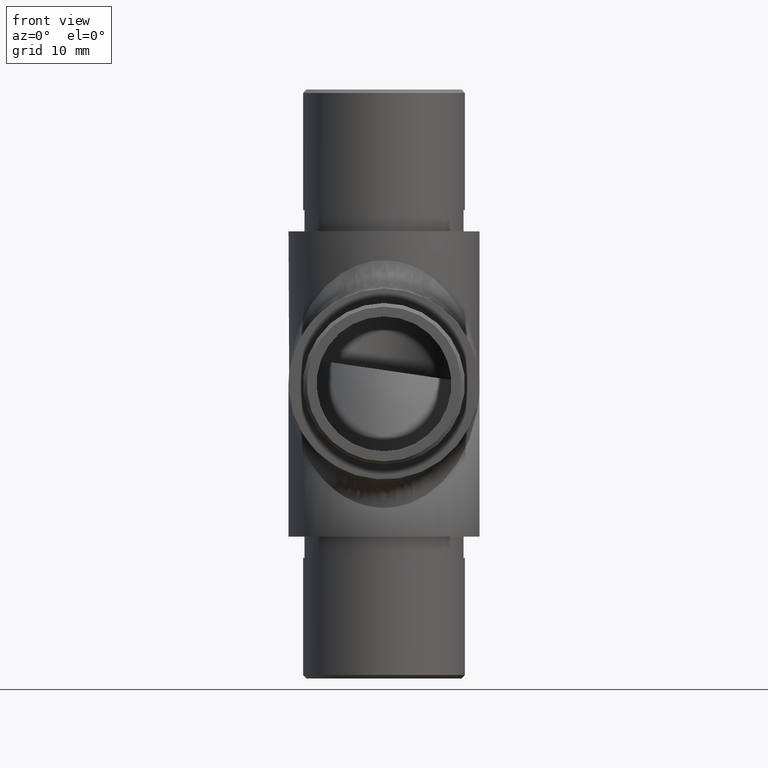
[diagram: clean part render]
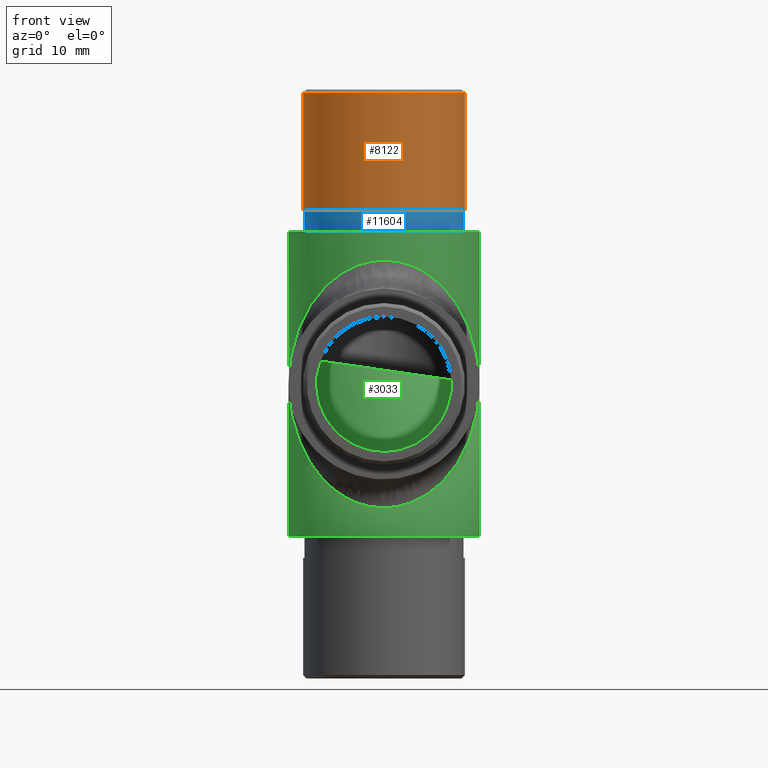
[diagram: same view with three faces highlighted in distinct colors, each labeled with its STEP entity id]
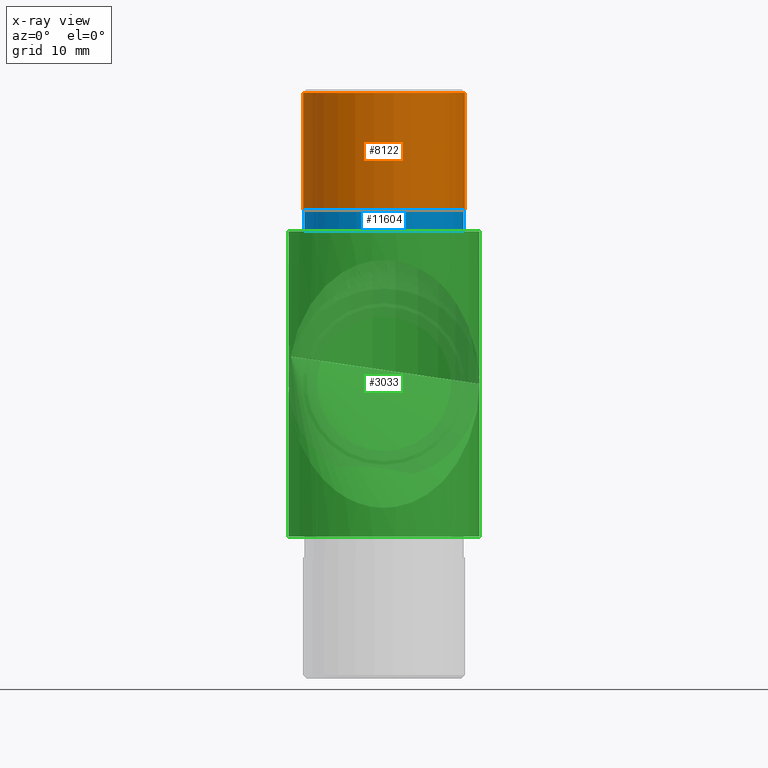
[diagram: x-ray of the same camera — body ghosted, the three highlighted faces saturated]
A machine part, front view with three faces highlighted in distinct colors.
The next image is the same camera in x-ray (body ghosted, the three faces saturated) — at least one of them is partly hidden behind the body in this view.
Their STEP definitions:

[orange] entity #8122 — the highlighted cylindrical surface (bore or boss wall) has radius 11.4 mm, axis along (-0, -0, -1).
#405 = AXIS2_PLACEMENT_3D ( 'NONE', #9499, #3172, #3078 ) ;
#772 = CARTESIAN_POINT ( 'NONE',  ( 11.40000000000000000, 41.50000000000000000, 40.99999999999998600 ) ) ;
#1977 = AXIS2_PLACEMENT_3D ( 'NONE', #11166, #6843, #9005 ) ;
#2106 = DIRECTION ( 'NONE',  ( 0.0000000000000000000, 0.0000000000000000000, 1.000000000000000000 ) ) ;
#2687 = FACE_OUTER_BOUND ( 'NONE', #12214, .T. ) ;
#2921 = ORIENTED_EDGE ( 'NONE', *, *, #9234, .T. ) ;
#3078 = DIRECTION ( 'NONE',  ( 1.000000000000000000, 0.0000000000000000000, 0.0000000000000000000 ) ) ;
#3172 = DIRECTION ( 'NONE',  ( 0.0000000000000000000, 0.0000000000000000000, -1.000000000000000000 ) ) ;
#3305 = CARTESIAN_POINT ( 'NONE',  ( 0.0000000000000000000, 41.50000000000000000, 24.49999999999999600 ) ) ;
#4240 = CIRCLE ( 'NONE', #405, 11.40000000000000000 ) ;
#4524 = VERTEX_POINT ( 'NONE', #772 ) ;
#4538 = CIRCLE ( 'NONE', #10994, 11.40000000000000000 ) ;
#4706 = CYLINDRICAL_SURFACE ( 'NONE', #1977, 11.40000000000000000 ) ;
#6654 = DIRECTION ( 'NONE',  ( 1.000000000000000000, 0.0000000000000000000, 0.0000000000000000000 ) ) ;
#6843 = DIRECTION ( 'NONE',  ( -0.0000000000000000000, -0.0000000000000000000, -1.000000000000000000 ) ) ;
#8122 = ADVANCED_FACE ( 'NONE', ( #2687, #12944 ), #4706, .T. ) ;
#9005 = DIRECTION ( 'NONE',  ( -1.000000000000000000, 0.0000000000000000000, 0.0000000000000000000 ) ) ;
#9234 = EDGE_CURVE ( 'NONE', #4524, #4524, #4240, .T. ) ;
#9443 = CARTESIAN_POINT ( 'NONE',  ( 11.40000000000000000, 41.50000000000000000, 24.49999999999999600 ) ) ;
#9499 = CARTESIAN_POINT ( 'NONE',  ( 0.0000000000000000000, 41.50000000000000000, 40.99999999999998600 ) ) ;
#10994 = AXIS2_PLACEMENT_3D ( 'NONE', #3305, #2106, #6654 ) ;
#11035 = ORIENTED_EDGE ( 'NONE', *, *, #13392, .T. ) ;
#11166 = CARTESIAN_POINT ( 'NONE',  ( 0.0000000000000000000, 41.50000000000000000, 41.49999999999999300 ) ) ;
#12181 = VERTEX_POINT ( 'NONE', #9443 ) ;
#12214 = EDGE_LOOP ( 'NONE', ( #2921 ) ) ;
#12944 = FACE_OUTER_BOUND ( 'NONE', #13546, .T. ) ;
#13392 = EDGE_CURVE ( 'NONE', #12181, #12181, #4538, .T. ) ;
#13546 = EDGE_LOOP ( 'NONE', ( #11035 ) ) ;

[blue] entity #11604 — the highlighted cylindrical surface (bore or boss wall) has radius 11.2 mm, axis along (-0, -0, -1).
#123 = FACE_OUTER_BOUND ( 'NONE', #3064, .T. ) ;
#356 = CARTESIAN_POINT ( 'NONE',  ( 0.0000000000000000000, 41.50000000000000000, 24.49999999999999600 ) ) ;
#525 = EDGE_CURVE ( 'NONE', #13727, #13727, #7216, .T. ) ;
#1483 = CYLINDRICAL_SURFACE ( 'NONE', #5974, 11.20000000000000100 ) ;
#1537 = CARTESIAN_POINT ( 'NONE',  ( 11.20000000000000100, 41.50000000000000000, 21.50000000000000000 ) ) ;
#3064 = EDGE_LOOP ( 'NONE', ( #13423 ) ) ;
#3975 = DIRECTION ( 'NONE',  ( 1.000000000000000000, 0.0000000000000000000, 0.0000000000000000000 ) ) ;
#4952 = CARTESIAN_POINT ( 'NONE',  ( 0.0000000000000000000, 41.50000000000000000, 24.49999999999999600 ) ) ;
#5024 = CARTESIAN_POINT ( 'NONE',  ( 11.20000000000000100, 41.50000000000000000, 24.49999999999999600 ) ) ;
#5090 = DIRECTION ( 'NONE',  ( 0.0000000000000000000, 0.0000000000000000000, 1.000000000000000000 ) ) ;
#5974 = AXIS2_PLACEMENT_3D ( 'NONE', #356, #7986, #13761 ) ;
#6261 = CIRCLE ( 'NONE', #9906, 11.20000000000000100 ) ;
#7216 = CIRCLE ( 'NONE', #11897, 11.20000000000000100 ) ;
#7631 = ORIENTED_EDGE ( 'NONE', *, *, #525, .T. ) ;
#7986 = DIRECTION ( 'NONE',  ( -0.0000000000000000000, -0.0000000000000000000, -1.000000000000000000 ) ) ;
#8385 = DIRECTION ( 'NONE',  ( 1.000000000000000000, 0.0000000000000000000, 0.0000000000000000000 ) ) ;
#9906 = AXIS2_PLACEMENT_3D ( 'NONE', #4952, #12375, #8385 ) ;
#10488 = CARTESIAN_POINT ( 'NONE',  ( 0.0000000000000000000, 41.50000000000000000, 21.50000000000000000 ) ) ;
#11604 = ADVANCED_FACE ( 'NONE', ( #123, #12541 ), #1483, .T. ) ;
#11897 = AXIS2_PLACEMENT_3D ( 'NONE', #10488, #5090, #3975 ) ;
#12375 = DIRECTION ( 'NONE',  ( 0.0000000000000000000, 0.0000000000000000000, 1.000000000000000000 ) ) ;
#12415 = EDGE_CURVE ( 'NONE', #12880, #12880, #6261, .T. ) ;
#12541 = FACE_OUTER_BOUND ( 'NONE', #14086, .T. ) ;
#12880 = VERTEX_POINT ( 'NONE', #5024 ) ;
#13423 = ORIENTED_EDGE ( 'NONE', *, *, #12415, .F. ) ;
#13727 = VERTEX_POINT ( 'NONE', #1537 ) ;
#13761 = DIRECTION ( 'NONE',  ( -1.000000000000000000, 0.0000000000000000000, 0.0000000000000000000 ) ) ;
#14086 = EDGE_LOOP ( 'NONE', ( #7631 ) ) ;

[green] entity #3033 — the highlighted cylindrical surface (bore or boss wall) has radius 13.45 mm, axis along (-0, -0, -1).
#116 = DIRECTION ( 'NONE',  ( -1.000000000000000000, 0.0000000000000000000, 0.0000000000000000000 ) ) ;
#385 = CIRCLE ( 'NONE', #5546, 13.45000000000000100 ) ;
#435 = FACE_OUTER_BOUND ( 'NONE', #1053, .T. ) ;
#1053 = EDGE_LOOP ( 'NONE', ( #5452 ) ) ;
#1435 =( BOUNDED_CURVE ( )  B_SPLINE_CURVE ( 3, ( #4201, #2064, #4259, #5368 ),
 .UNSPECIFIED., .F., .T. ) 
 B_SPLINE_CURVE_WITH_KNOTS ( ( 4, 4 ),
 ( 4.712388980384689700, 7.853981633974482800 ),
 .UNSPECIFIED. ) 
 CURVE ( )  GEOMETRIC_REPRESENTATION_ITEM ( )  RATIONAL_B_SPLINE_CURVE ( ( 1.000000000000000000, 0.3333333333333333700, 0.3333333333333333700, 1.000000000000000000 ) ) 
 REPRESENTATION_ITEM ( '' )  );
#1965 = VERTEX_POINT ( 'NONE', #8714 ) ;
#2064 = CARTESIAN_POINT ( 'NONE',  ( 13.45000000000000500, 14.59999999999250000, -34.89999999999998400 ) ) ;
#2877 = CARTESIAN_POINT ( 'NONE',  ( 13.45000000000000100, 41.50000000000000000, 21.50000000000000000 ) ) ;
#3033 = ADVANCED_FACE ( 'NONE', ( #435, #11027, #11521 ), #8642, .T. ) ;
#3170 = EDGE_LOOP ( 'NONE', ( #10130, #6821 ) ) ;
#3176 = DIRECTION ( 'NONE',  ( -0.0000000000000000000, -0.0000000000000000000, -1.000000000000000000 ) ) ;
#3206 = CARTESIAN_POINT ( 'NONE',  ( 13.44999999999999400, 14.59999999999250000, 34.89999999999998400 ) ) ;
#3250 = AXIS2_PLACEMENT_3D ( 'NONE', #6532, #3176, #116 ) ;
#4065 = AXIS2_PLACEMENT_3D ( 'NONE', #13693, #13741, #8247 ) ;
#4201 = CARTESIAN_POINT ( 'NONE',  ( 13.45000000000000100, 41.49999999999250400, 0.0000000000000000000 ) ) ;
#4259 = CARTESIAN_POINT ( 'NONE',  ( -13.44999999999999600, 14.59999999999250000, -34.89999999999998400 ) ) ;
#4319 = VERTEX_POINT ( 'NONE', #4370 ) ;
#4370 = CARTESIAN_POINT ( 'NONE',  ( -13.45000000000000100, 41.49999999999250400, 0.0000000000000000000 ) ) ;
#4557 = EDGE_CURVE ( 'NONE', #5890, #5890, #13909, .T. ) ;
#5368 = CARTESIAN_POINT ( 'NONE',  ( -13.45000000000000100, 41.49999999999250400, 0.0000000000000000000 ) ) ;
#5452 = ORIENTED_EDGE ( 'NONE', *, *, #7168, .T. ) ;
#5546 = AXIS2_PLACEMENT_3D ( 'NONE', #11067, #6469, #7497 ) ;
#5890 = VERTEX_POINT ( 'NONE', #2877 ) ;
#6469 = DIRECTION ( 'NONE',  ( 0.0000000000000000000, 0.0000000000000000000, 1.000000000000000000 ) ) ;
#6532 = CARTESIAN_POINT ( 'NONE',  ( 0.0000000000000000000, 41.50000000000000000, 21.50000000000000000 ) ) ;
#6821 = ORIENTED_EDGE ( 'NONE', *, *, #8442, .T. ) ;
#7151 = ORIENTED_EDGE ( 'NONE', *, *, #4557, .F. ) ;
#7168 = EDGE_CURVE ( 'NONE', #10827, #10827, #385, .T. ) ;
#7497 = DIRECTION ( 'NONE',  ( 1.000000000000000000, 0.0000000000000000000, 0.0000000000000000000 ) ) ;
#8247 = DIRECTION ( 'NONE',  ( 1.000000000000000000, 0.0000000000000000000, 0.0000000000000000000 ) ) ;
#8442 = EDGE_CURVE ( 'NONE', #1965, #4319, #1435, .T. ) ;
#8642 = CYLINDRICAL_SURFACE ( 'NONE', #3250, 13.45000000000000100 ) ;
#8714 = CARTESIAN_POINT ( 'NONE',  ( 13.45000000000000100, 41.49999999999250400, 0.0000000000000000000 ) ) ;
#8731 = EDGE_LOOP ( 'NONE', ( #7151 ) ) ;
#9749 =( BOUNDED_CURVE ( )  B_SPLINE_CURVE ( 3, ( #12771, #10609, #3206, #13020 ),
 .UNSPECIFIED., .F., .F. ) 
 B_SPLINE_CURVE_WITH_KNOTS ( ( 4, 4 ),
 ( 1.570796326794896600, 4.712388980384689700 ),
 .UNSPECIFIED. ) 
 CURVE ( )  GEOMETRIC_REPRESENTATION_ITEM ( )  RATIONAL_B_SPLINE_CURVE ( ( 1.000000000000000000, 0.3333333333333333700, 0.3333333333333333700, 1.000000000000000000 ) ) 
 REPRESENTATION_ITEM ( '' )  );
#10130 = ORIENTED_EDGE ( 'NONE', *, *, #10765, .T. ) ;
#10481 = CARTESIAN_POINT ( 'NONE',  ( 13.45000000000000100, 41.50000000000000000, -21.50000000000000000 ) ) ;
#10609 = CARTESIAN_POINT ( 'NONE',  ( -13.44999999999999900, 14.59999999999250000, 34.89999999999998400 ) ) ;
#10765 = EDGE_CURVE ( 'NONE', #4319, #1965, #9749, .T. ) ;
#10827 = VERTEX_POINT ( 'NONE', #10481 ) ;
#11027 = FACE_OUTER_BOUND ( 'NONE', #8731, .T. ) ;
#11067 = CARTESIAN_POINT ( 'NONE',  ( 0.0000000000000000000, 41.50000000000000000, -21.50000000000000000 ) ) ;
#11521 = FACE_BOUND ( 'NONE', #3170, .T. ) ;
#12771 = CARTESIAN_POINT ( 'NONE',  ( -13.45000000000000100, 41.49999999999250400, 0.0000000000000000000 ) ) ;
#13020 = CARTESIAN_POINT ( 'NONE',  ( 13.45000000000000100, 41.49999999999250400, 0.0000000000000000000 ) ) ;
#13693 = CARTESIAN_POINT ( 'NONE',  ( 0.0000000000000000000, 41.50000000000000000, 21.50000000000000000 ) ) ;
#13741 = DIRECTION ( 'NONE',  ( 0.0000000000000000000, 0.0000000000000000000, 1.000000000000000000 ) ) ;
#13909 = CIRCLE ( 'NONE', #4065, 13.45000000000000100 ) ;